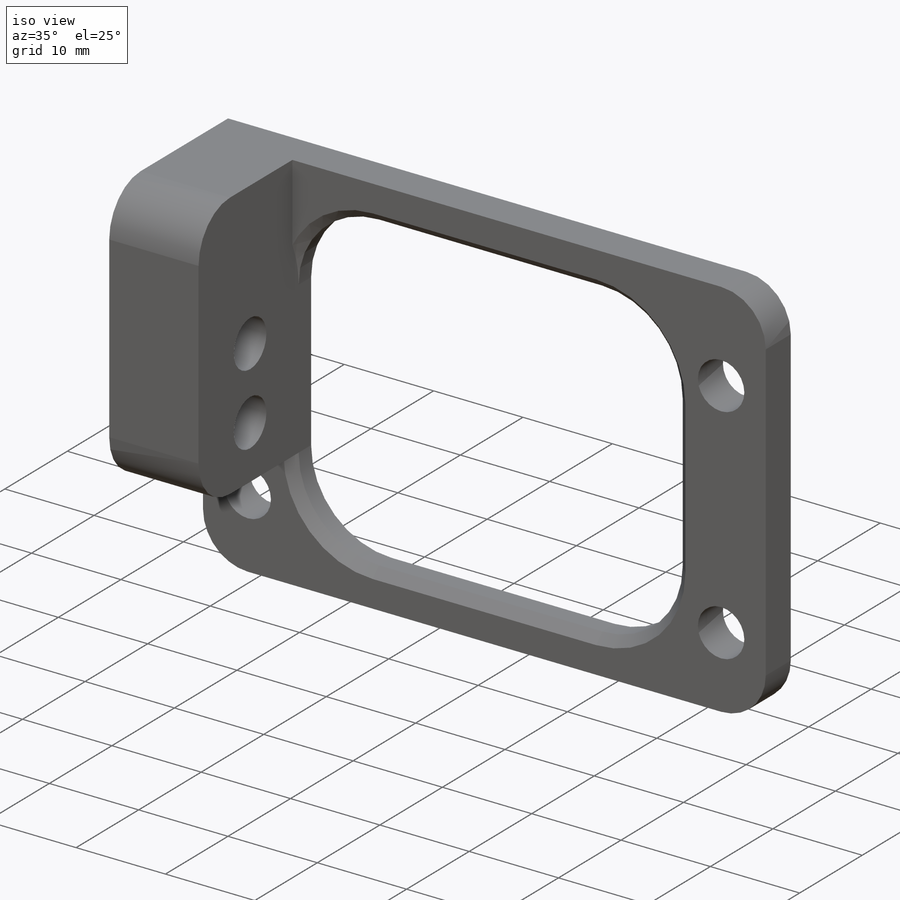
[diagram: iso view]
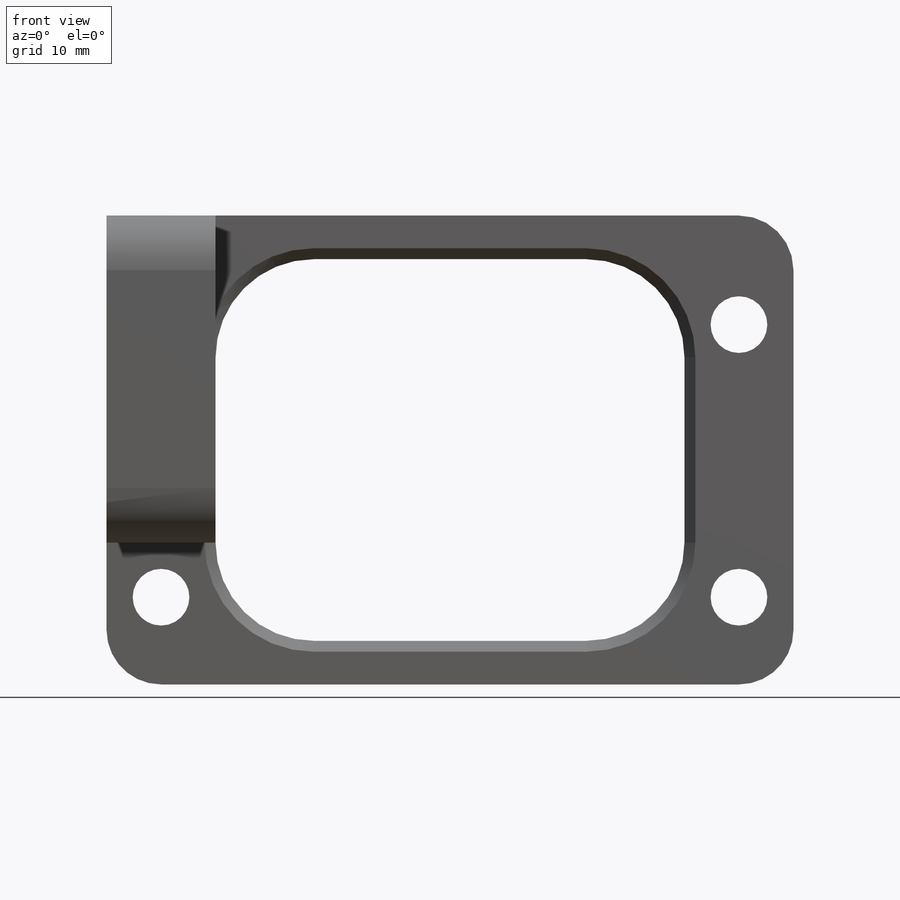
[diagram: front view]
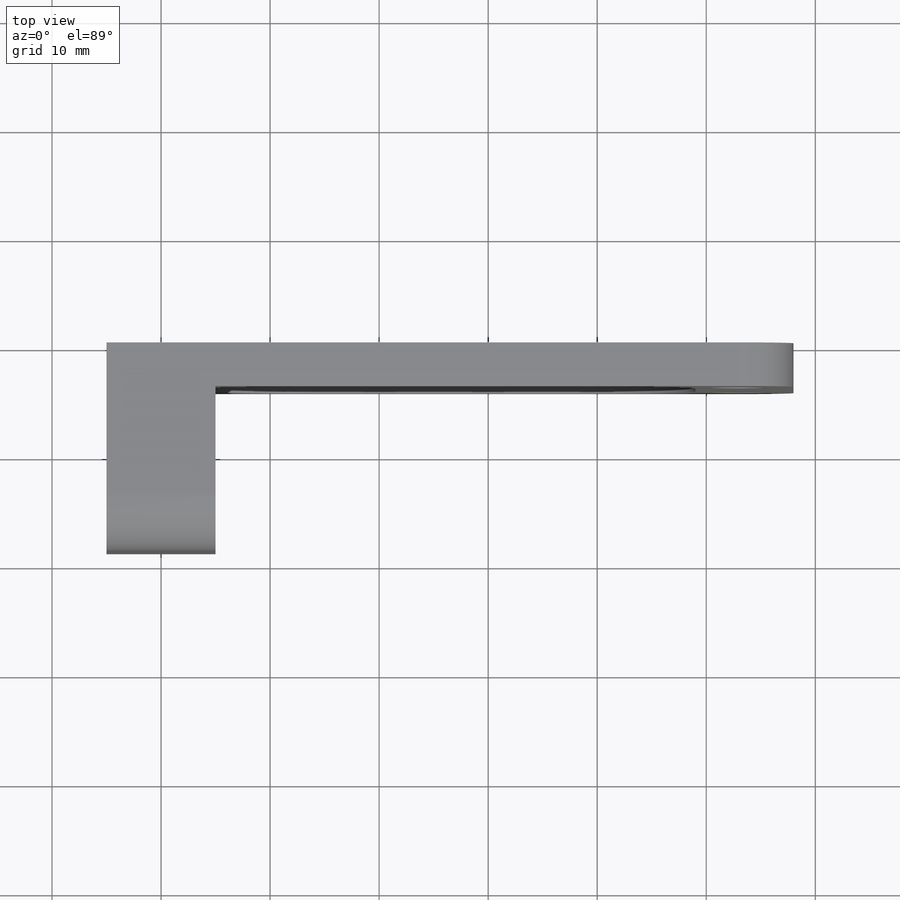
[diagram: top view]
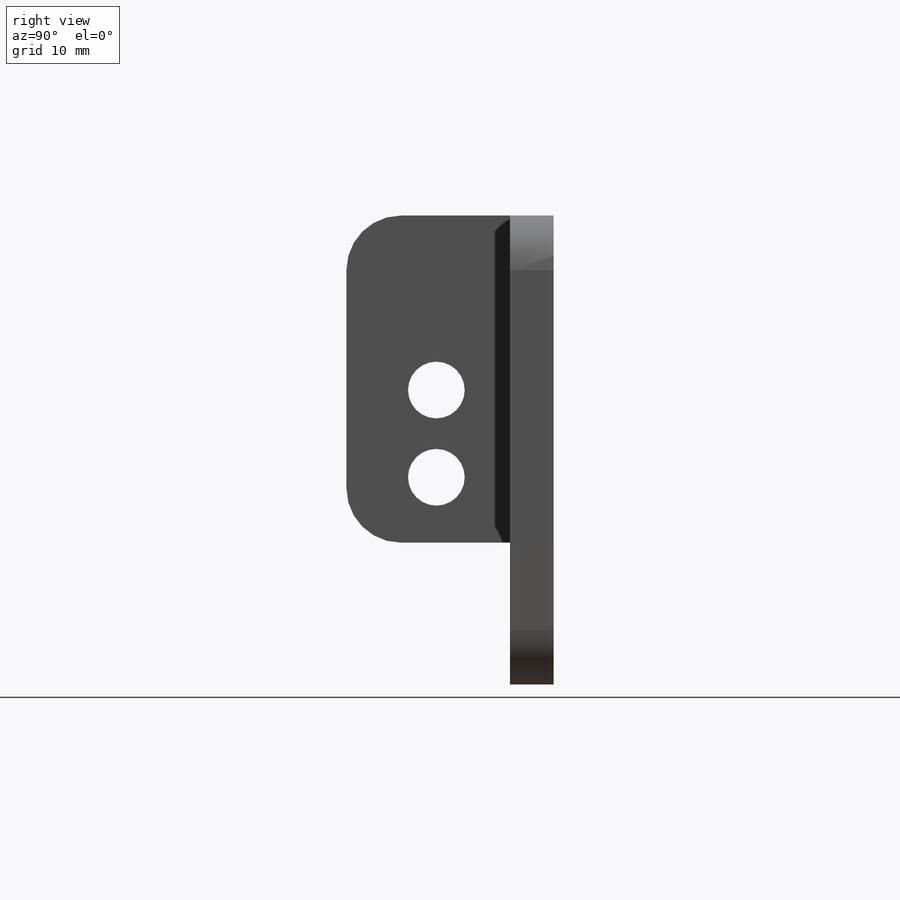
[diagram: right view]
SOLIDWORKS PART (.sldprt)
format: sldprt  version: not decoded by parser v0  size: 218,624 bytes
history: native  units: mm
features: sketch x2, extrude x2, material x1, chamfer x1 (+11 scaffold rows collapsed)
feature tree (17):
  scaffold x11  (default folders/planes/origin — collapsed)
  material  "Material <not specified>"
  sketch  "Sketch1"  dims[c1.D1=9.0mm c1.D2=5.2mm c1.D11=5.0mm c1.D3=1.0mm c1.D4=1.0mm c1.D5=1.0mm c1.D6=1.0mm c1.D7=10.0mm c1.D8=4.0mm c1.D9=4.0mm c1.D10=10.0mm c2.D3=53.0mm c2.D4=25.0mm c2.D5=8.0mm c2.D6=43.0mm c2.D12=5.0mm c2.D13=63.0mm c2.D14=35.0mm]
  extrude  "Boss-Extrude1"  Depth=4mm
  sketch  "Sketch3"  dims[D3=5.2mm D7=5.0mm D1=6.0mm D2=8.0mm D4=10.75mm D5=8.25mm D6=30.0mm]
  extrude  "Boss-Extrude2"  Depth=10mm
  chamfer  "Chamfer1"  Distance=1mm Angle=45deg
decode coverage: 5 of 5 modeling features carry decoded parameters
note: suppression state not decoded; provenance and decode notes live in map.json
